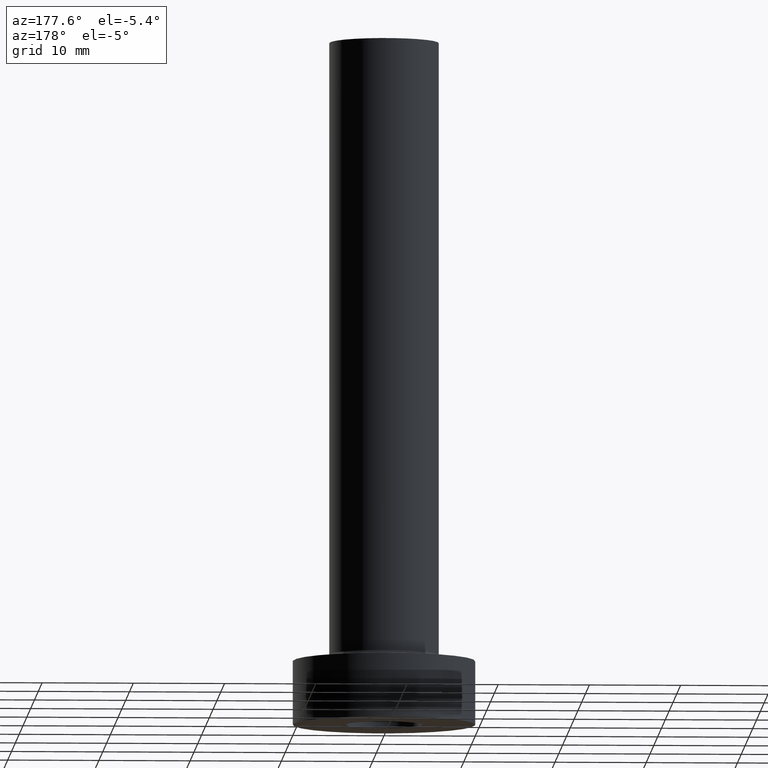
[diagram: clean part render]
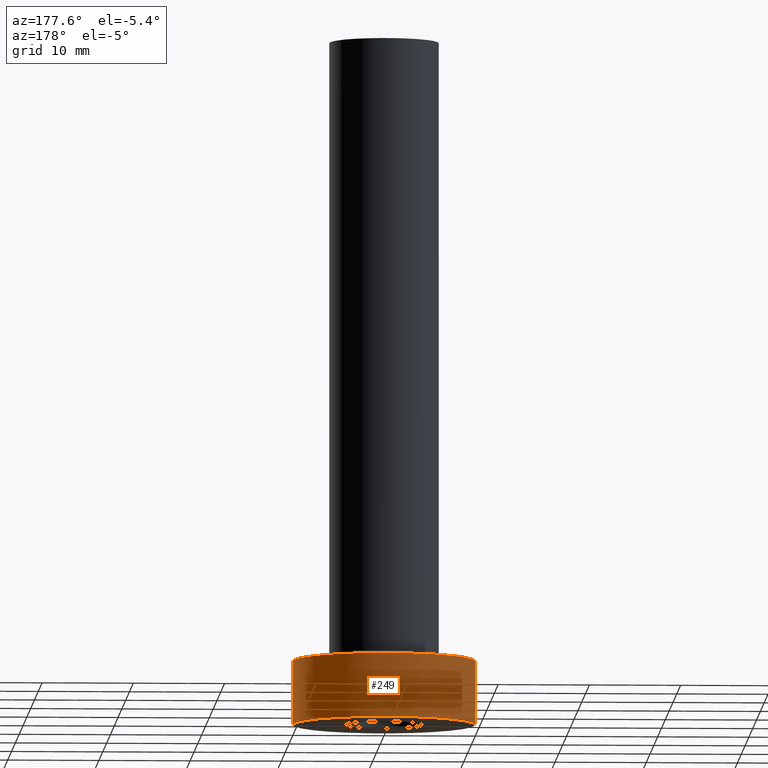
[diagram: same view with one face highlighted and labeled with its STEP entity id]
A machine part, auxiliary view. The second image highlights one B-rep face of the part: STEP entity #249.
In plain terms, the highlighted cylindrical surface (partial cylindrical patch) has radius 10 mm, axis along (-0, -0, -1).
Its self-contained STEP definition (entity closure, byte-faithful):
#7 = DIRECTION ( 'NONE',  ( 0.000000000000000000, 0.000000000000000000, 1.000000000000000000 ) ) ;
#25 = ORIENTED_EDGE ( 'NONE', *, *, #377, .F. ) ;
#28 = EDGE_LOOP ( 'NONE', ( #146, #206, #85, #25 ) ) ;
#35 = EDGE_CURVE ( 'NONE', #157, #337, #100, .T. ) ;
#51 = CIRCLE ( 'NONE', #86, 10.00000000000000000 ) ;
#54 = EDGE_CURVE ( 'NONE', #157, #244, #385, .T. ) ;
#65 = DIRECTION ( 'NONE',  ( -0.000000000000000000, -0.000000000000000000, -1.000000000000000000 ) ) ;
#85 = ORIENTED_EDGE ( 'NONE', *, *, #280, .T. ) ;
#86 = AXIS2_PLACEMENT_3D ( 'NONE', #320, #343, #245 ) ;
#90 = CARTESIAN_POINT ( 'NONE',  ( -10.00000000000000000, 0.000000000000000000, 7.000000000000000000 ) ) ;
#100 = LINE ( 'NONE', #406, #214 ) ;
#105 = DIRECTION ( 'NONE',  ( -1.000000000000000000, 0.000000000000000000, 0.000000000000000000 ) ) ;
#131 = VERTEX_POINT ( 'NONE', #398 ) ;
#141 = LINE ( 'NONE', #382, #306 ) ;
#146 = ORIENTED_EDGE ( 'NONE', *, *, #54, .F. ) ;
#157 = VERTEX_POINT ( 'NONE', #327 ) ;
#201 = CARTESIAN_POINT ( 'NONE',  ( 0.000000000000000000, 0.000000000000000000, 7.000000000000000000 ) ) ;
#206 = ORIENTED_EDGE ( 'NONE', *, *, #35, .T. ) ;
#214 = VECTOR ( 'NONE', #366, 1000.000000000000000 ) ;
#226 = CARTESIAN_POINT ( 'NONE',  ( 0.000000000000000000, 0.000000000000000000, 7.000000000000000000 ) ) ;
#236 = FACE_OUTER_BOUND ( 'NONE', #28, .T. ) ;
#244 = VERTEX_POINT ( 'NONE', #90 ) ;
#245 = DIRECTION ( 'NONE',  ( 1.000000000000000000, 0.000000000000000000, 0.000000000000000000 ) ) ;
#249 = ADVANCED_FACE ( 'NONE', ( #236 ), #375, .T. ) ;
#280 = EDGE_CURVE ( 'NONE', #337, #131, #51, .T. ) ;
#306 = VECTOR ( 'NONE', #65, 1000.000000000000000 ) ;
#320 = CARTESIAN_POINT ( 'NONE',  ( 0.000000000000000000, 0.000000000000000000, 0.000000000000000000 ) ) ;
#327 = CARTESIAN_POINT ( 'NONE',  ( 10.00000000000000000, 1.224646799147353256E-15, 7.000000000000000000 ) ) ;
#336 = AXIS2_PLACEMENT_3D ( 'NONE', #226, #7, #363 ) ;
#337 = VERTEX_POINT ( 'NONE', #348 ) ;
#338 = DIRECTION ( 'NONE',  ( -0.000000000000000000, -0.000000000000000000, -1.000000000000000000 ) ) ;
#343 = DIRECTION ( 'NONE',  ( 0.000000000000000000, 0.000000000000000000, 1.000000000000000000 ) ) ;
#348 = CARTESIAN_POINT ( 'NONE',  ( 10.00000000000000000, 1.224646799147353256E-15, 0.000000000000000000 ) ) ;
#363 = DIRECTION ( 'NONE',  ( 1.000000000000000000, 0.000000000000000000, 0.000000000000000000 ) ) ;
#366 = DIRECTION ( 'NONE',  ( -0.000000000000000000, -0.000000000000000000, -1.000000000000000000 ) ) ;
#375 = CYLINDRICAL_SURFACE ( 'NONE', #421, 10.00000000000000000 ) ;
#377 = EDGE_CURVE ( 'NONE', #244, #131, #141, .T. ) ;
#382 = CARTESIAN_POINT ( 'NONE',  ( -10.00000000000000000, 0.000000000000000000, 7.000000000000000000 ) ) ;
#385 = CIRCLE ( 'NONE', #336, 10.00000000000000000 ) ;
#398 = CARTESIAN_POINT ( 'NONE',  ( -10.00000000000000000, 0.000000000000000000, 0.000000000000000000 ) ) ;
#406 = CARTESIAN_POINT ( 'NONE',  ( 10.00000000000000000, 1.224646799147353256E-15, 7.000000000000000000 ) ) ;
#421 = AXIS2_PLACEMENT_3D ( 'NONE', #201, #338, #105 ) ;